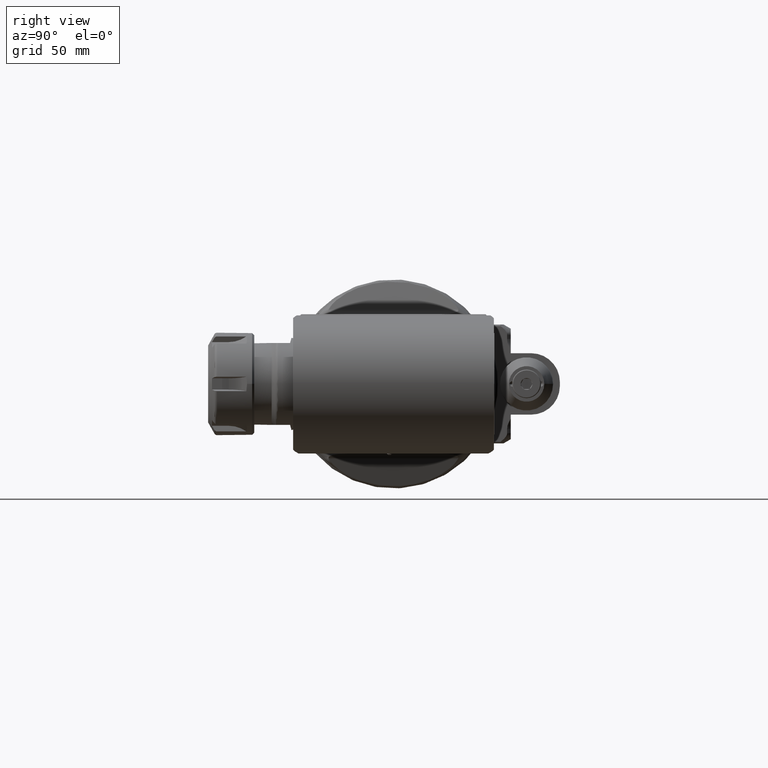
[diagram: clean part render]
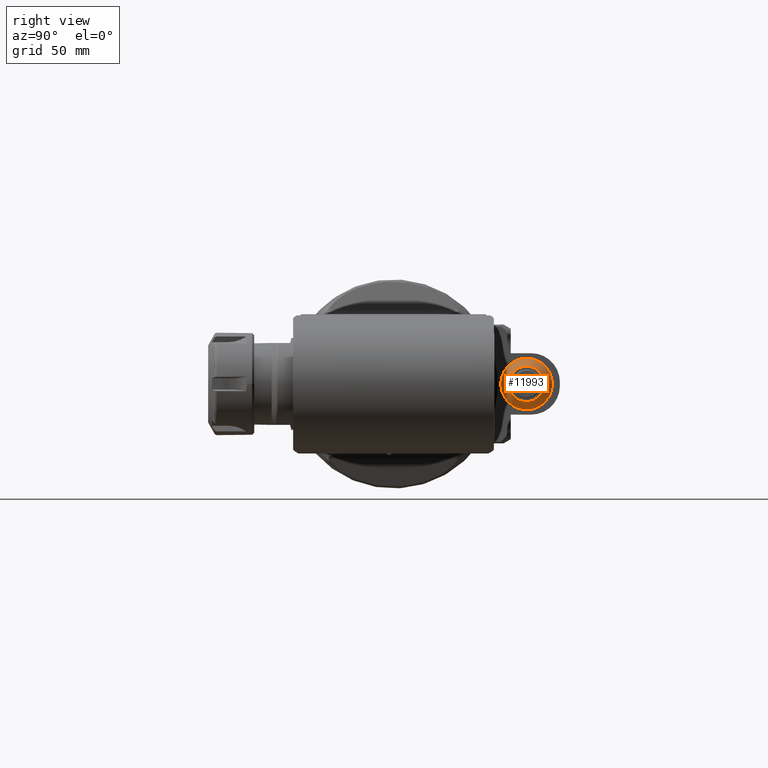
[diagram: same view with one face highlighted and labeled with its STEP entity id]
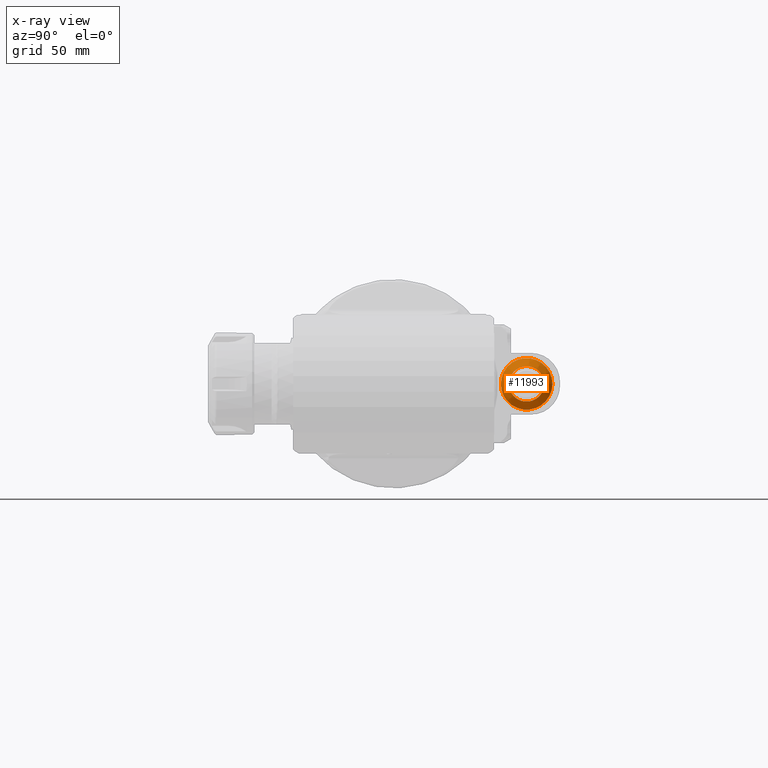
[diagram: x-ray of the same camera — body ghosted, the highlighted face saturated]
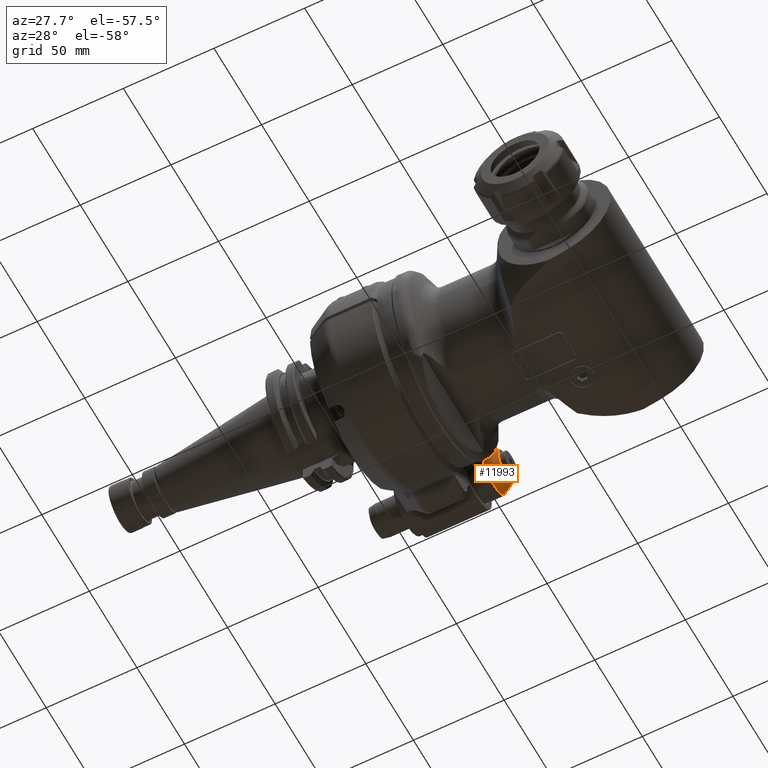
[diagram: same view with one face highlighted and labeled with its STEP entity id]
A machine part, right view. The second image highlights one B-rep face of the part: STEP entity #11993.
The next image is the same camera in x-ray: the body ghosted, the highlighted face saturated — about 0% of this face is hidden behind the body in this view.
A second angle (auxiliary view) of the same face is appended — the face is thin or edge-on in the first view.
In plain terms, the highlighted conical surface has half-angle 30 deg.
Its self-contained STEP definition (entity closure, byte-faithful):
#147=CONICAL_SURFACE('',#12962,10.63397459622,0.523598775598299);
#1449=LINE('',#24170,#2305);
#2305=VECTOR('',#15261,10.63397459622);
#3094=FACE_OUTER_BOUND('',#3801,.T.);
#3801=EDGE_LOOP('',(#9948,#9949,#9950,#9951));
#4367=CIRCLE('',#12961,12.59807621135);
#4368=CIRCLE('',#12963,8.669872981078);
#5395=VERTEX_POINT('',#24165);
#5396=VERTEX_POINT('',#24169);
#6981=EDGE_CURVE('',#5395,#5395,#4367,.T.);
#6982=EDGE_CURVE('',#5395,#5396,#1449,.T.);
#6983=EDGE_CURVE('',#5396,#5396,#4368,.T.);
#9948=ORIENTED_EDGE('',*,*,#6981,.F.);
#9949=ORIENTED_EDGE('',*,*,#6982,.T.);
#9950=ORIENTED_EDGE('',*,*,#6983,.F.);
#9951=ORIENTED_EDGE('',*,*,#6982,.F.);
#11993=ADVANCED_FACE('',(#3094),#147,.T.);
#12961=AXIS2_PLACEMENT_3D('',#24167,#15257,#15258);
#12962=AXIS2_PLACEMENT_3D('',#24168,#15259,#15260);
#12963=AXIS2_PLACEMENT_3D('',#24171,#15262,#15263);
#15257=DIRECTION('center_axis',(-1.,0.,0.));
#15258=DIRECTION('ref_axis',(0.,1.,0.));
#15259=DIRECTION('center_axis',(-1.,0.,0.));
#15260=DIRECTION('ref_axis',(0.,-1.,0.));
#15261=DIRECTION('',(0.866025403784439,-0.5,6.12323399573676E-17));
#15262=DIRECTION('center_axis',(1.,0.,0.));
#15263=DIRECTION('ref_axis',(0.,-1.,0.));
#24165=CARTESIAN_POINT('',(-7.303847577293,77.59807621135,0.));
#24167=CARTESIAN_POINT('Origin',(-7.303847577293,65.,0.));
#24168=CARTESIAN_POINT('Origin',(-3.901923788647,65.,0.));
#24169=CARTESIAN_POINT('',(-0.5,73.66987298108,0.));
#24170=CARTESIAN_POINT('',(-3.901923788647,75.63397459622,-1.30228629514751E-15));
#24171=CARTESIAN_POINT('Origin',(-0.5,65.,0.));